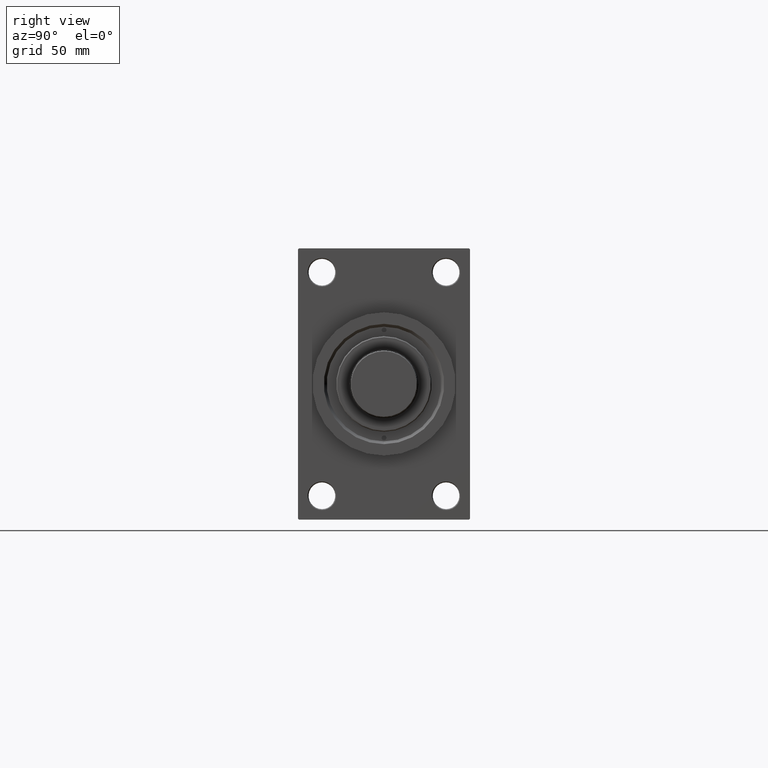
[diagram: clean part render]
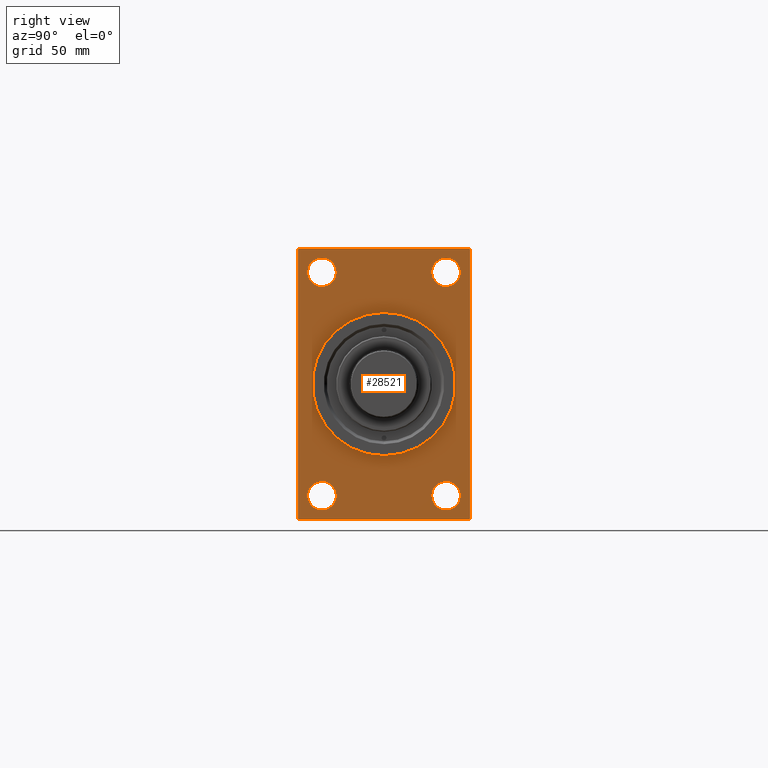
[diagram: same view with one face highlighted and labeled with its STEP entity id]
A machine part, right view. The second image highlights one B-rep face of the part: STEP entity #28521.
In plain terms, the highlighted planar face has unit normal (-1, 0, 0).
Its self-contained STEP definition (entity closure, byte-faithful):
#176 = CIRCLE ( 'NONE', #4023, 7.499999999999985789 ) ;
#553 = CIRCLE ( 'NONE', #11407, 7.499999999999965361 ) ;
#1542 = CIRCLE ( 'NONE', #28648, 7.499999999999965361 ) ;
#1717 = VERTEX_POINT ( 'NONE', #2795 ) ;
#1792 = CIRCLE ( 'NONE', #20361, 7.499999999999978684 ) ;
#2069 = LINE ( 'NONE', #16862, #26333 ) ;
#2704 = ORIENTED_EDGE ( 'NONE', *, *, #9856, .T. ) ;
#2753 = EDGE_CURVE ( 'NONE', #42592, #41320, #3093, .T. ) ;
#2795 = CARTESIAN_POINT ( 'NONE',  ( 245.0000000000000000, -32.50000000000000000, -65.99999999999995737 ) ) ;
#3093 = LINE ( 'NONE', #42823, #45472 ) ;
#3703 = DIRECTION ( 'NONE',  ( 0.000000000000000000, 0.000000000000000000, 1.000000000000000000 ) ) ;
#3751 = DIRECTION ( 'NONE',  ( -0.000000000000000000, 0.000000000000000000, 1.000000000000000000 ) ) ;
#3937 = AXIS2_PLACEMENT_3D ( 'NONE', #7434, #41064, #40828 ) ;
#4023 = AXIS2_PLACEMENT_3D ( 'NONE', #19009, #22883, #7410 ) ;
#4665 = VERTEX_POINT ( 'NONE', #38920 ) ;
#5131 = VERTEX_POINT ( 'NONE', #31962 ) ;
#5621 = CARTESIAN_POINT ( 'NONE',  ( 245.0000000000000000, 32.50000000000000711, 65.99999999999997158 ) ) ;
#5899 = EDGE_LOOP ( 'NONE', ( #20839, #31632 ) ) ;
#6226 = LINE ( 'NONE', #47622, #13096 ) ;
#6513 = VERTEX_POINT ( 'NONE', #29069 ) ;
#6814 = CARTESIAN_POINT ( 'NONE',  ( 245.0000000000000000, -44.49999999999995026, 70.99999999999998579 ) ) ;
#6935 = ORIENTED_EDGE ( 'NONE', *, *, #24525, .T. ) ;
#7026 = DIRECTION ( 'NONE',  ( -0.000000000000000000, -0.7071067811865622277, -0.7071067811865328068 ) ) ;
#7410 = DIRECTION ( 'NONE',  ( 0.000000000000000000, 0.000000000000000000, 1.000000000000000000 ) ) ;
#7434 = CARTESIAN_POINT ( 'NONE',  ( 245.0000000000000000, 32.50000000000000711, -58.50000000000000000 ) ) ;
#7551 = EDGE_CURVE ( 'NONE', #30653, #17311, #1542, .T. ) ;
#7693 = ORIENTED_EDGE ( 'NONE', *, *, #39993, .T. ) ;
#7731 = CARTESIAN_POINT ( 'NONE',  ( 245.0000000000000000, -44.99999999999997158, 70.50000000000000000 ) ) ;
#7964 = EDGE_CURVE ( 'NONE', #30346, #35869, #2069, .T. ) ;
#8007 = DIRECTION ( 'NONE',  ( -1.000000000000000000, 0.000000000000000000, -0.000000000000000000 ) ) ;
#8109 = ORIENTED_EDGE ( 'NONE', *, *, #31862, .F. ) ;
#8257 = EDGE_CURVE ( 'NONE', #4665, #10450, #43356, .T. ) ;
#8715 = CIRCLE ( 'NONE', #41959, 37.50000000000000711 ) ;
#8816 = LINE ( 'NONE', #37876, #19423 ) ;
#9299 = AXIS2_PLACEMENT_3D ( 'NONE', #17771, #36163, #28659 ) ;
#9382 = CIRCLE ( 'NONE', #3937, 7.499999999999978684 ) ;
#9449 = CIRCLE ( 'NONE', #19455, 7.499999999999965361 ) ;
#9784 = EDGE_LOOP ( 'NONE', ( #36883, #6935 ) ) ;
#9856 = EDGE_CURVE ( 'NONE', #33239, #30346, #8816, .T. ) ;
#10136 = CARTESIAN_POINT ( 'NONE',  ( 245.0000000000000000, -32.50000000000000000, 58.50000000000000711 ) ) ;
#10450 = VERTEX_POINT ( 'NONE', #32366 ) ;
#10563 = CARTESIAN_POINT ( 'NONE',  ( 245.0000000000000000, 0.000000000000000000, 0.000000000000000000 ) ) ;
#11407 = AXIS2_PLACEMENT_3D ( 'NONE', #36961, #40599, #40818 ) ;
#11468 = EDGE_CURVE ( 'NONE', #17311, #30653, #9449, .T. ) ;
#11971 = CARTESIAN_POINT ( 'NONE',  ( 245.0000000000000000, -44.99999999999997158, 70.99999999999998579 ) ) ;
#12765 = EDGE_CURVE ( 'NONE', #33239, #41320, #26768, .T. ) ;
#13096 = VECTOR ( 'NONE', #36261, 1000.000000000000000 ) ;
#13536 = ORIENTED_EDGE ( 'NONE', *, *, #45469, .T. ) ;
#14180 = ORIENTED_EDGE ( 'NONE', *, *, #2753, .T. ) ;
#14214 = FACE_BOUND ( 'NONE', #36276, .T. ) ;
#14242 = AXIS2_PLACEMENT_3D ( 'NONE', #10136, #32908, #40398 ) ;
#14313 = CARTESIAN_POINT ( 'NONE',  ( 245.0000000000000000, 32.50000000000000711, 58.50000000000000711 ) ) ;
#14804 = VECTOR ( 'NONE', #37161, 1000.000000000000000 ) ;
#15017 = LINE ( 'NONE', #7731, #25055 ) ;
#15358 = VERTEX_POINT ( 'NONE', #39051 ) ;
#15420 = EDGE_LOOP ( 'NONE', ( #44754, #16924 ) ) ;
#15888 = EDGE_CURVE ( 'NONE', #42592, #5131, #6226, .T. ) ;
#16080 = LINE ( 'NONE', #11971, #14804 ) ;
#16511 = CARTESIAN_POINT ( 'NONE',  ( 245.0000000000000000, 32.50000000000000711, -65.99999999999997158 ) ) ;
#16862 = CARTESIAN_POINT ( 'NONE',  ( 245.0000000000000000, 45.00000000000002132, 71.00000000000000000 ) ) ;
#16924 = ORIENTED_EDGE ( 'NONE', *, *, #21025, .T. ) ;
#17126 = DIRECTION ( 'NONE',  ( 1.000000000000000000, 0.000000000000000000, 0.000000000000000000 ) ) ;
#17311 = VERTEX_POINT ( 'NONE', #33470 ) ;
#17361 = DIRECTION ( 'NONE',  ( -1.000000000000000000, 0.000000000000000000, -0.000000000000000000 ) ) ;
#17498 = CARTESIAN_POINT ( 'NONE',  ( 245.0000000000000000, 45.00000000000001421, -70.50000000000001421 ) ) ;
#17771 = CARTESIAN_POINT ( 'NONE',  ( 245.0000000000000000, 0.000000000000000000, 0.000000000000000000 ) ) ;
#18093 = ORIENTED_EDGE ( 'NONE', *, *, #7964, .T. ) ;
#19009 = CARTESIAN_POINT ( 'NONE',  ( 245.0000000000000000, -32.50000000000000000, -58.49999999999999289 ) ) ;
#19102 = VERTEX_POINT ( 'NONE', #36490 ) ;
#19423 = VECTOR ( 'NONE', #23578, 1000.000000000000114 ) ;
#19425 = DIRECTION ( 'NONE',  ( -1.000000000000000000, 0.000000000000000000, -0.000000000000000000 ) ) ;
#19455 = AXIS2_PLACEMENT_3D ( 'NONE', #35256, #17361, #24594 ) ;
#20078 = CARTESIAN_POINT ( 'NONE',  ( 245.0000000000000000, -44.99999999999997158, 70.50000000000000000 ) ) ;
#20361 = AXIS2_PLACEMENT_3D ( 'NONE', #32080, #19425, #3703 ) ;
#20713 = LINE ( 'NONE', #27989, #43586 ) ;
#20839 = ORIENTED_EDGE ( 'NONE', *, *, #11468, .T. ) ;
#21025 = EDGE_CURVE ( 'NONE', #6513, #1717, #40227, .T. ) ;
#21326 = VERTEX_POINT ( 'NONE', #37721 ) ;
#21494 = VECTOR ( 'NONE', #29935, 1000.000000000000000 ) ;
#21700 = FACE_BOUND ( 'NONE', #9784, .T. ) ;
#22883 = DIRECTION ( 'NONE',  ( -1.000000000000000000, 0.000000000000000000, -0.000000000000000000 ) ) ;
#22890 = CARTESIAN_POINT ( 'NONE',  ( 245.0000000000000000, 44.50000000000007105, 71.00000000000000000 ) ) ;
#23578 = DIRECTION ( 'NONE',  ( 0.000000000000000000, -0.7071067811865474617, 0.7071067811865474617 ) ) ;
#24207 = AXIS2_PLACEMENT_3D ( 'NONE', #10563, #25325, #3751 ) ;
#24525 = EDGE_CURVE ( 'NONE', #15358, #43498, #9382, .T. ) ;
#24594 = DIRECTION ( 'NONE',  ( 0.000000000000000000, 0.000000000000000000, 1.000000000000000000 ) ) ;
#25055 = VECTOR ( 'NONE', #7026, 1000.000000000000000 ) ;
#25325 = DIRECTION ( 'NONE',  ( -1.000000000000000000, 0.000000000000000000, -0.000000000000000000 ) ) ;
#25912 = ORIENTED_EDGE ( 'NONE', *, *, #15888, .F. ) ;
#26122 = DIRECTION ( 'NONE',  ( -1.000000000000000000, 0.000000000000000000, -0.000000000000000000 ) ) ;
#26333 = VECTOR ( 'NONE', #35493, 1000.000000000000000 ) ;
#26768 = LINE ( 'NONE', #37662, #21494 ) ;
#26777 = VERTEX_POINT ( 'NONE', #34902 ) ;
#27486 = EDGE_CURVE ( 'NONE', #1717, #6513, #176, .T. ) ;
#27597 = ORIENTED_EDGE ( 'NONE', *, *, #38498, .T. ) ;
#27989 = CARTESIAN_POINT ( 'NONE',  ( 245.0000000000000000, -44.50000000000000000, -71.00000000000000000 ) ) ;
#28521 = ADVANCED_FACE ( 'NONE', ( #14214, #40339, #21700, #36941, #32850, #28975 ), #43736, .F. ) ;
#28599 = ORIENTED_EDGE ( 'NONE', *, *, #12765, .F. ) ;
#28648 = AXIS2_PLACEMENT_3D ( 'NONE', #14313, #26122, #40889 ) ;
#28659 = DIRECTION ( 'NONE',  ( 0.000000000000000000, 0.000000000000000000, -1.000000000000000000 ) ) ;
#28874 = VERTEX_POINT ( 'NONE', #20078 ) ;
#28975 = FACE_OUTER_BOUND ( 'NONE', #31955, .T. ) ;
#29069 = CARTESIAN_POINT ( 'NONE',  ( 245.0000000000000000, -32.50000000000000000, -51.00000000000000711 ) ) ;
#29935 = DIRECTION ( 'NONE',  ( 0.000000000000000000, -4.886545002751570165E-17, -1.000000000000000000 ) ) ;
#30346 = VERTEX_POINT ( 'NONE', #22890 ) ;
#30653 = VERTEX_POINT ( 'NONE', #5621 ) ;
#31632 = ORIENTED_EDGE ( 'NONE', *, *, #7551, .T. ) ;
#31862 = EDGE_CURVE ( 'NONE', #10450, #4665, #8715, .T. ) ;
#31955 = EDGE_LOOP ( 'NONE', ( #7693, #13536, #25912, #14180, #28599, #2704, #18093, #47474 ) ) ;
#31962 = CARTESIAN_POINT ( 'NONE',  ( 245.0000000000000000, -44.49999999999997158, -71.00000000000000000 ) ) ;
#32080 = CARTESIAN_POINT ( 'NONE',  ( 245.0000000000000000, 32.50000000000000711, -58.50000000000000000 ) ) ;
#32182 = EDGE_LOOP ( 'NONE', ( #37751, #8109 ) ) ;
#32366 = CARTESIAN_POINT ( 'NONE',  ( 245.0000000000000000, 4.592425496802575156E-15, -37.50000000000000711 ) ) ;
#32850 = FACE_BOUND ( 'NONE', #32182, .T. ) ;
#32908 = DIRECTION ( 'NONE',  ( -1.000000000000000000, 0.000000000000000000, -0.000000000000000000 ) ) ;
#33157 = EDGE_CURVE ( 'NONE', #43498, #15358, #1792, .T. ) ;
#33239 = VERTEX_POINT ( 'NONE', #44848 ) ;
#33470 = CARTESIAN_POINT ( 'NONE',  ( 245.0000000000000000, 32.50000000000000711, 51.00000000000004263 ) ) ;
#33992 = EDGE_CURVE ( 'NONE', #19102, #21326, #35091, .T. ) ;
#34902 = CARTESIAN_POINT ( 'NONE',  ( 245.0000000000000000, -44.99999999999997158, -70.50000000000000000 ) ) ;
#35091 = CIRCLE ( 'NONE', #14242, 7.499999999999965361 ) ;
#35256 = CARTESIAN_POINT ( 'NONE',  ( 245.0000000000000000, 32.50000000000000711, 58.50000000000000711 ) ) ;
#35491 = DIRECTION ( 'NONE',  ( 0.000000000000000000, 0.7071067811865376918, -0.7071067811865573427 ) ) ;
#35493 = DIRECTION ( 'NONE',  ( 0.000000000000000000, -1.000000000000000000, -1.541976423090495387E-16 ) ) ;
#35869 = VERTEX_POINT ( 'NONE', #6814 ) ;
#36163 = DIRECTION ( 'NONE',  ( 1.000000000000000000, 0.000000000000000000, 0.000000000000000000 ) ) ;
#36261 = DIRECTION ( 'NONE',  ( 0.000000000000000000, -1.000000000000000000, -1.541976423090495633E-16 ) ) ;
#36276 = EDGE_LOOP ( 'NONE', ( #44524, #27597 ) ) ;
#36490 = CARTESIAN_POINT ( 'NONE',  ( 245.0000000000000000, -32.50000000000000000, 51.00000000000004263 ) ) ;
#36883 = ORIENTED_EDGE ( 'NONE', *, *, #33157, .T. ) ;
#36941 = FACE_BOUND ( 'NONE', #5899, .T. ) ;
#36961 = CARTESIAN_POINT ( 'NONE',  ( 245.0000000000000000, -32.50000000000000000, 58.50000000000000711 ) ) ;
#37161 = DIRECTION ( 'NONE',  ( 0.000000000000000000, 0.000000000000000000, -1.000000000000000000 ) ) ;
#37662 = CARTESIAN_POINT ( 'NONE',  ( 245.0000000000000000, 45.00000000000002132, 71.00000000000000000 ) ) ;
#37721 = CARTESIAN_POINT ( 'NONE',  ( 245.0000000000000000, -32.50000000000000000, 65.99999999999997158 ) ) ;
#37751 = ORIENTED_EDGE ( 'NONE', *, *, #8257, .F. ) ;
#37876 = CARTESIAN_POINT ( 'NONE',  ( 245.0000000000000000, 44.50000000000007105, 71.00000000000000000 ) ) ;
#38498 = EDGE_CURVE ( 'NONE', #21326, #19102, #553, .T. ) ;
#38920 = CARTESIAN_POINT ( 'NONE',  ( 245.0000000000000000, 0.000000000000000000, 37.50000000000000711 ) ) ;
#39051 = CARTESIAN_POINT ( 'NONE',  ( 245.0000000000000000, 32.50000000000000711, -51.00000000000001421 ) ) ;
#39993 = EDGE_CURVE ( 'NONE', #28874, #26777, #16080, .T. ) ;
#40227 = CIRCLE ( 'NONE', #46385, 7.499999999999985789 ) ;
#40339 = FACE_BOUND ( 'NONE', #15420, .T. ) ;
#40398 = DIRECTION ( 'NONE',  ( 0.000000000000000000, 0.000000000000000000, 1.000000000000000000 ) ) ;
#40599 = DIRECTION ( 'NONE',  ( -1.000000000000000000, 0.000000000000000000, -0.000000000000000000 ) ) ;
#40818 = DIRECTION ( 'NONE',  ( 0.000000000000000000, 0.000000000000000000, 1.000000000000000000 ) ) ;
#40828 = DIRECTION ( 'NONE',  ( 0.000000000000000000, 0.000000000000000000, 1.000000000000000000 ) ) ;
#40889 = DIRECTION ( 'NONE',  ( 0.000000000000000000, 0.000000000000000000, 1.000000000000000000 ) ) ;
#41064 = DIRECTION ( 'NONE',  ( -1.000000000000000000, 0.000000000000000000, -0.000000000000000000 ) ) ;
#41170 = CARTESIAN_POINT ( 'NONE',  ( 245.0000000000000000, -32.50000000000000000, -58.49999999999999289 ) ) ;
#41320 = VERTEX_POINT ( 'NONE', #17498 ) ;
#41959 = AXIS2_PLACEMENT_3D ( 'NONE', #42770, #17126, #46633 ) ;
#42592 = VERTEX_POINT ( 'NONE', #44125 ) ;
#42770 = CARTESIAN_POINT ( 'NONE',  ( 245.0000000000000000, 0.000000000000000000, 0.000000000000000000 ) ) ;
#42823 = CARTESIAN_POINT ( 'NONE',  ( 245.0000000000000000, 45.00000000000001421, -70.50000000000001421 ) ) ;
#43356 = CIRCLE ( 'NONE', #9299, 37.50000000000000711 ) ;
#43498 = VERTEX_POINT ( 'NONE', #16511 ) ;
#43586 = VECTOR ( 'NONE', #35491, 1000.000000000000114 ) ;
#43736 = PLANE ( 'NONE',  #24207 ) ;
#44125 = CARTESIAN_POINT ( 'NONE',  ( 245.0000000000000000, 44.50000000000006395, -70.99999999999998579 ) ) ;
#44344 = DIRECTION ( 'NONE',  ( 0.000000000000000000, 0.000000000000000000, 1.000000000000000000 ) ) ;
#44524 = ORIENTED_EDGE ( 'NONE', *, *, #33992, .T. ) ;
#44754 = ORIENTED_EDGE ( 'NONE', *, *, #27486, .T. ) ;
#44848 = CARTESIAN_POINT ( 'NONE',  ( 245.0000000000000000, 45.00000000000002132, 70.50000000000004263 ) ) ;
#45469 = EDGE_CURVE ( 'NONE', #26777, #5131, #20713, .T. ) ;
#45472 = VECTOR ( 'NONE', #47400, 1000.000000000000114 ) ;
#46239 = EDGE_CURVE ( 'NONE', #35869, #28874, #15017, .T. ) ;
#46385 = AXIS2_PLACEMENT_3D ( 'NONE', #41170, #8007, #44344 ) ;
#46633 = DIRECTION ( 'NONE',  ( 0.000000000000000000, 0.000000000000000000, -1.000000000000000000 ) ) ;
#47400 = DIRECTION ( 'NONE',  ( -0.000000000000000000, 0.7071067811865376918, 0.7071067811865573427 ) ) ;
#47474 = ORIENTED_EDGE ( 'NONE', *, *, #46239, .T. ) ;
#47622 = CARTESIAN_POINT ( 'NONE',  ( 245.0000000000000000, 45.00000000000001421, -70.99999999999998579 ) ) ;